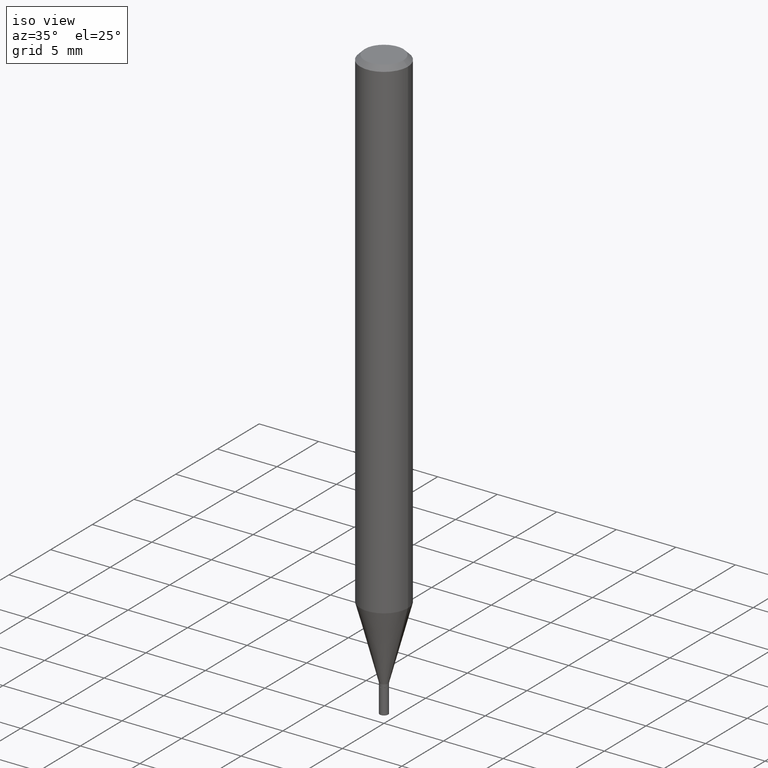
[diagram: clean part render]
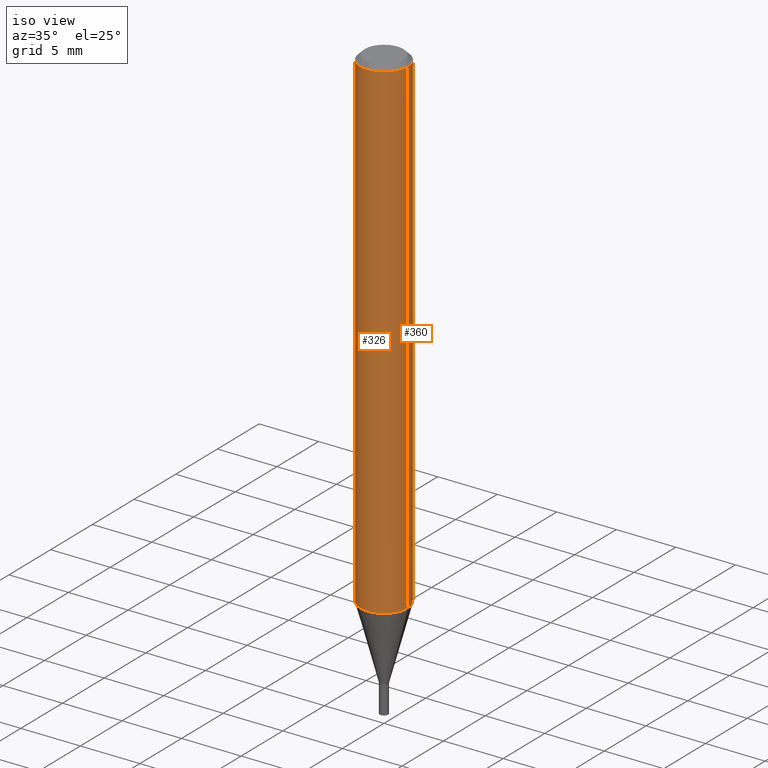
[diagram: same view with one multi-face feature highlighted, each face labeled with its STEP entity id]
A machine part, iso view. The highlighted faces form ONE feature: a constant-radius fillet chain: 2 tangent blend faces with common blend radius 2.0002 mm. The faces share edges in the B-rep.
Their STEP definitions:
[1] entity #360 (Cylinder):
#4 = CARTESIAN_POINT ( 'NONE',  ( 0.07875000000000000056, -6.251858007389948925E-15, -1.633103300048402540 ) ) ;
#19 = EDGE_CURVE ( 'NONE', #68, #347, #266, .T. ) ;
#36 = DIRECTION ( 'NONE',  ( 1.000000000000000000, -6.982962677686261977E-15, 0.000000000000000000 ) ) ;
#62 = VECTOR ( 'NONE', #229, 39.37007874015748143 ) ;
#66 = VERTEX_POINT ( 'NONE', #431 ) ;
#68 = VERTEX_POINT ( 'NONE', #4 ) ;
#73 = CIRCLE ( 'NONE', #330, 0.07875000000000000056 ) ;
#81 = CARTESIAN_POINT ( 'NONE',  ( -0.07875000000000000056, 5.595524044110789003E-16, -3.873661383575737792E-30 ) ) ;
#95 = FACE_OUTER_BOUND ( 'NONE', #285, .T. ) ;
#98 = CARTESIAN_POINT ( 'NONE',  ( 3.668203209277705088E-31, -5.237222008264718399E-17, -0.01499999999999999944 ) ) ;
#103 = CARTESIAN_POINT ( 'NONE',  ( -0.07875000000000000056, -5.142397292111077566E-15, -1.633103300048402540 ) ) ;
#104 = VERTEX_POINT ( 'NONE', #114 ) ;
#105 = DIRECTION ( 'NONE',  ( -2.445468806185136597E-29, 3.491481338843145583E-15, 1.000000000000000000 ) ) ;
#113 = EDGE_CURVE ( 'NONE', #347, #104, #262, .T. ) ;
#114 = CARTESIAN_POINT ( 'NONE',  ( -0.07875000000000000056, -2.317608553891323119E-15, -0.01499999999999999944 ) ) ;
#135 = CARTESIAN_POINT ( 'NONE',  ( 0.000000000000000000, 0.000000000000000000, 0.000000000000000000 ) ) ;
#146 = DIRECTION ( 'NONE',  ( -2.445468806185136597E-29, 3.491481338843145583E-15, 1.000000000000000000 ) ) ;
#167 = VECTOR ( 'NONE', #333, 39.37007874015748143 ) ;
#196 = CARTESIAN_POINT ( 'NONE',  ( 0.07875000000000000056, -5.499083108677934443E-16, 3.839989210939299016E-30 ) ) ;
#209 = ORIENTED_EDGE ( 'NONE', *, *, #113, .T. ) ;
#212 = EDGE_CURVE ( 'NONE', #68, #66, #240, .T. ) ;
#229 = DIRECTION ( 'NONE',  ( -2.445468806185136877E-29, 3.491481338843145188E-15, 1.000000000000000000 ) ) ;
#240 = LINE ( 'NONE', #196, #167 ) ;
#248 = CYLINDRICAL_SURFACE ( 'NONE', #270, 0.07875000000000000056 ) ;
#262 = LINE ( 'NONE', #81, #62 ) ;
#263 = CARTESIAN_POINT ( 'NONE',  ( 3.993703177546373766E-29, -5.701949696522156368E-15, -1.633103300048402540 ) ) ;
#266 = CIRCLE ( 'NONE', #345, 0.07875000000000000056 ) ;
#270 = AXIS2_PLACEMENT_3D ( 'NONE', #135, #312, #319 ) ;
#273 = ORIENTED_EDGE ( 'NONE', *, *, #387, .F. ) ;
#282 = DIRECTION ( 'NONE',  ( 1.000000000000000000, -6.982962677686265922E-15, 0.000000000000000000 ) ) ;
#285 = EDGE_LOOP ( 'NONE', ( #363, #209, #273, #415 ) ) ;
#312 = DIRECTION ( 'NONE',  ( -2.445468806185136597E-29, 3.491481338843145583E-15, 1.000000000000000000 ) ) ;
#319 = DIRECTION ( 'NONE',  ( 1.000000000000000000, -6.982962677686265922E-15, 4.876176775795935232E-29 ) ) ;
#330 = AXIS2_PLACEMENT_3D ( 'NONE', #98, #105, #282 ) ;
#333 = DIRECTION ( 'NONE',  ( -2.445468806185136877E-29, 3.491481338843145188E-15, 1.000000000000000000 ) ) ;
#345 = AXIS2_PLACEMENT_3D ( 'NONE', #263, #146, #36 ) ;
#347 = VERTEX_POINT ( 'NONE', #103 ) ;
#360 = ADVANCED_FACE ( 'NONE', ( #95 ), #248, .T. ) ;
#363 = ORIENTED_EDGE ( 'NONE', *, *, #19, .T. ) ;
#387 = EDGE_CURVE ( 'NONE', #66, #104, #73, .T. ) ;
#415 = ORIENTED_EDGE ( 'NONE', *, *, #212, .F. ) ;
#431 = CARTESIAN_POINT ( 'NONE',  ( 0.07875000000000000056, -6.022805309504406221E-16, -0.01499999999999999944 ) ) ;
[2] entity #326 (Cylinder):
#4 = CARTESIAN_POINT ( 'NONE',  ( 0.07875000000000000056, -6.251858007389948925E-15, -1.633103300048402540 ) ) ;
#12 = EDGE_CURVE ( 'NONE', #104, #66, #245, .T. ) ;
#34 = ORIENTED_EDGE ( 'NONE', *, *, #80, .T. ) ;
#62 = VECTOR ( 'NONE', #229, 39.37007874015748143 ) ;
#66 = VERTEX_POINT ( 'NONE', #431 ) ;
#68 = VERTEX_POINT ( 'NONE', #4 ) ;
#80 = EDGE_CURVE ( 'NONE', #347, #68, #160, .T. ) ;
#81 = CARTESIAN_POINT ( 'NONE',  ( -0.07875000000000000056, 5.595524044110789003E-16, -3.873661383575737792E-30 ) ) ;
#103 = CARTESIAN_POINT ( 'NONE',  ( -0.07875000000000000056, -5.142397292111077566E-15, -1.633103300048402540 ) ) ;
#104 = VERTEX_POINT ( 'NONE', #114 ) ;
#113 = EDGE_CURVE ( 'NONE', #347, #104, #262, .T. ) ;
#114 = CARTESIAN_POINT ( 'NONE',  ( -0.07875000000000000056, -2.317608553891323119E-15, -0.01499999999999999944 ) ) ;
#127 = FACE_OUTER_BOUND ( 'NONE', #464, .T. ) ;
#160 = CIRCLE ( 'NONE', #288, 0.07875000000000000056 ) ;
#167 = VECTOR ( 'NONE', #333, 39.37007874015748143 ) ;
#172 = ORIENTED_EDGE ( 'NONE', *, *, #113, .F. ) ;
#196 = CARTESIAN_POINT ( 'NONE',  ( 0.07875000000000000056, -5.499083108677934443E-16, 3.839989210939299016E-30 ) ) ;
#212 = EDGE_CURVE ( 'NONE', #68, #66, #240, .T. ) ;
#223 = ORIENTED_EDGE ( 'NONE', *, *, #12, .F. ) ;
#224 = CARTESIAN_POINT ( 'NONE',  ( 3.993703177546373766E-29, -5.701949696522156368E-15, -1.633103300048402540 ) ) ;
#229 = DIRECTION ( 'NONE',  ( -2.445468806185136877E-29, 3.491481338843145188E-15, 1.000000000000000000 ) ) ;
#230 = CARTESIAN_POINT ( 'NONE',  ( 3.668203209277705088E-31, -5.237222008264718399E-17, -0.01499999999999999944 ) ) ;
#234 = AXIS2_PLACEMENT_3D ( 'NONE', #383, #385, #280 ) ;
#240 = LINE ( 'NONE', #196, #167 ) ;
#245 = CIRCLE ( 'NONE', #352, 0.07875000000000000056 ) ;
#247 = ORIENTED_EDGE ( 'NONE', *, *, #212, .T. ) ;
#255 = DIRECTION ( 'NONE',  ( 1.000000000000000000, -6.982962677686261977E-15, 0.000000000000000000 ) ) ;
#262 = LINE ( 'NONE', #81, #62 ) ;
#280 = DIRECTION ( 'NONE',  ( 1.000000000000000000, -6.982962677686265922E-15, 4.876176775795935232E-29 ) ) ;
#288 = AXIS2_PLACEMENT_3D ( 'NONE', #224, #359, #255 ) ;
#326 = ADVANCED_FACE ( 'NONE', ( #127 ), #452, .T. ) ;
#333 = DIRECTION ( 'NONE',  ( -2.445468806185136877E-29, 3.491481338843145188E-15, 1.000000000000000000 ) ) ;
#347 = VERTEX_POINT ( 'NONE', #103 ) ;
#352 = AXIS2_PLACEMENT_3D ( 'NONE', #230, #393, #466 ) ;
#359 = DIRECTION ( 'NONE',  ( -2.445468806185136597E-29, 3.491481338843145583E-15, 1.000000000000000000 ) ) ;
#383 = CARTESIAN_POINT ( 'NONE',  ( 0.000000000000000000, 0.000000000000000000, 0.000000000000000000 ) ) ;
#385 = DIRECTION ( 'NONE',  ( -2.445468806185136597E-29, 3.491481338843145583E-15, 1.000000000000000000 ) ) ;
#393 = DIRECTION ( 'NONE',  ( -2.445468806185136597E-29, 3.491481338843145583E-15, 1.000000000000000000 ) ) ;
#431 = CARTESIAN_POINT ( 'NONE',  ( 0.07875000000000000056, -6.022805309504406221E-16, -0.01499999999999999944 ) ) ;
#452 = CYLINDRICAL_SURFACE ( 'NONE', #234, 0.07875000000000000056 ) ;
#464 = EDGE_LOOP ( 'NONE', ( #172, #34, #247, #223 ) ) ;
#466 = DIRECTION ( 'NONE',  ( 1.000000000000000000, -6.982962677686265922E-15, 0.000000000000000000 ) ) ;